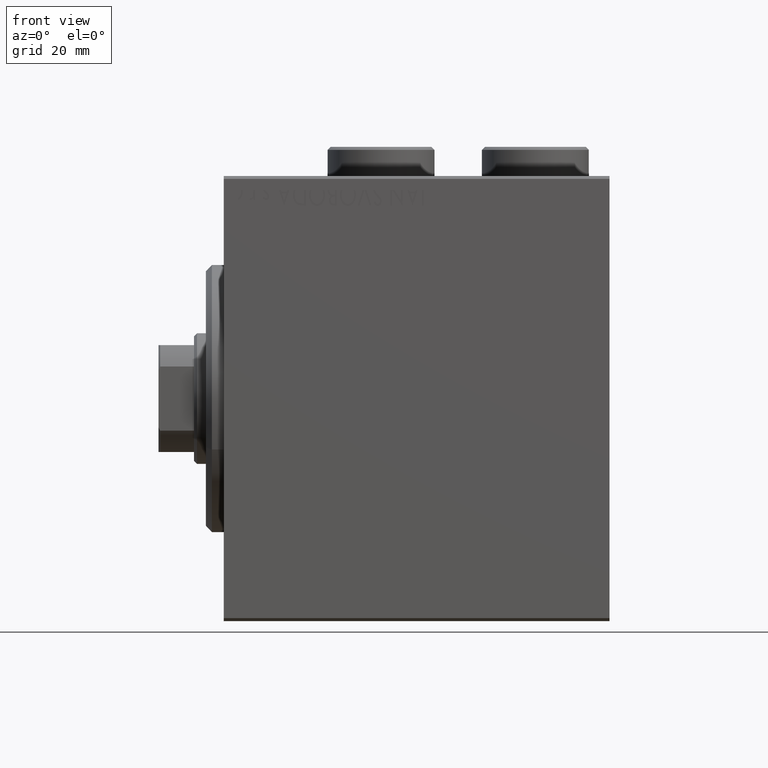
[diagram: clean part render]
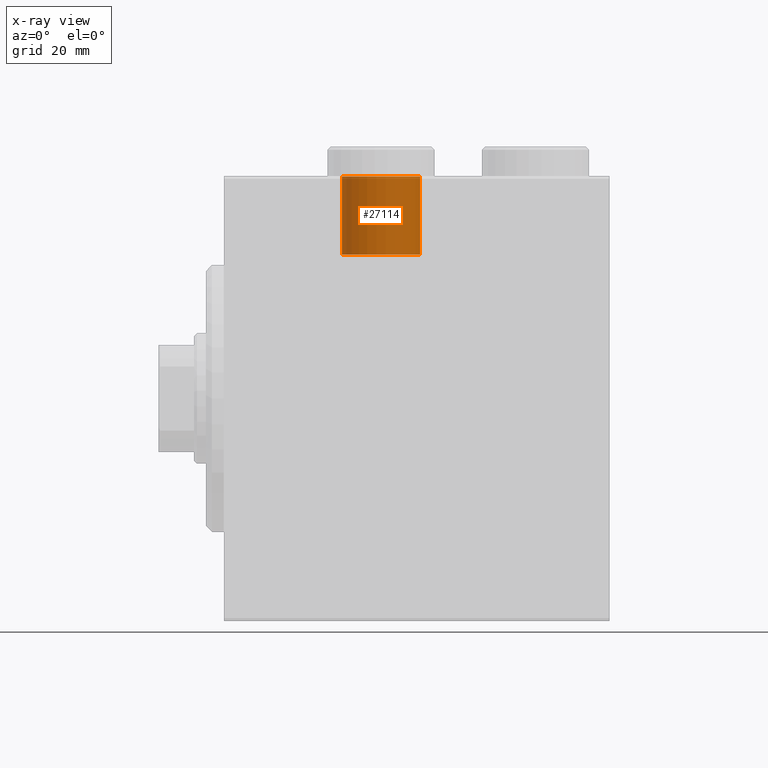
[diagram: x-ray — body ghosted, one internal face saturated and labeled with its STEP entity id]
A machine part, front view, then the same camera in x-ray: the body is ghosted and one INTERNAL B-rep face — a face not visible from any outside direction — is saturated and labeled: STEP entity #27114.
In plain terms, the highlighted cylindrical surface (partial cylindrical patch) has radius 6.58 mm, axis along (0, 0, 1).
Its self-contained STEP definition (entity closure, byte-faithful):
#1441 = AXIS2_PLACEMENT_3D ( 'NONE', #12755, #16866, #34208 ) ;
#1852 = FACE_OUTER_BOUND ( 'NONE', #9164, .T. ) ;
#3192 = VERTEX_POINT ( 'NONE', #39449 ) ;
#3264 = EDGE_CURVE ( 'NONE', #3192, #10413, #6350, .T. ) ;
#3537 = VECTOR ( 'NONE', #18986, 1000.000000000000000 ) ;
#4770 = CARTESIAN_POINT ( 'NONE',  ( 26.50000000000000000, -4.731064025391292434E-15, 37.40000000000000568 ) ) ;
#5526 = CARTESIAN_POINT ( 'NONE',  ( 33.07999999999999829, -4.731064025391292434E-15, 24.24000000000000554 ) ) ;
#5877 = EDGE_CURVE ( 'NONE', #14943, #10413, #12148, .T. ) ;
#6350 = CIRCLE ( 'NONE', #10006, 6.579999999999999183 ) ;
#8926 = DIRECTION ( 'NONE',  ( 1.000000000000000000, 0.000000000000000000, 0.000000000000000000 ) ) ;
#9164 = EDGE_LOOP ( 'NONE', ( #34846, #44509, #32918, #32646 ) ) ;
#10006 = AXIS2_PLACEMENT_3D ( 'NONE', #4770, #42647, #18677 ) ;
#10413 = VERTEX_POINT ( 'NONE', #36075 ) ;
#12148 = LINE ( 'NONE', #5526, #3537 ) ;
#12755 = CARTESIAN_POINT ( 'NONE',  ( 26.50000000000000000, -4.731064025391292434E-15, 24.24000000000000554 ) ) ;
#12761 = LINE ( 'NONE', #19821, #38728 ) ;
#14943 = VERTEX_POINT ( 'NONE', #25802 ) ;
#15020 = VERTEX_POINT ( 'NONE', #18298 ) ;
#15281 = CIRCLE ( 'NONE', #1441, 6.579999999999999183 ) ;
#16866 = DIRECTION ( 'NONE',  ( 0.000000000000000000, 0.000000000000000000, 1.000000000000000000 ) ) ;
#18298 = CARTESIAN_POINT ( 'NONE',  ( 19.92000000000000171, -3.925246431552334181E-15, 24.24000000000000554 ) ) ;
#18677 = DIRECTION ( 'NONE',  ( 1.000000000000000000, 0.000000000000000000, 0.000000000000000000 ) ) ;
#18986 = DIRECTION ( 'NONE',  ( -0.000000000000000000, -0.000000000000000000, 1.000000000000000000 ) ) ;
#19821 = CARTESIAN_POINT ( 'NONE',  ( 19.92000000000000171, -3.925246431552334181E-15, 24.24000000000000554 ) ) ;
#25802 = CARTESIAN_POINT ( 'NONE',  ( 33.07999999999999829, -4.731064025391292434E-15, 24.24000000000000554 ) ) ;
#27114 = ADVANCED_FACE ( 'NONE', ( #1852 ), #29686, .F. ) ;
#29686 = CYLINDRICAL_SURFACE ( 'NONE', #37008, 6.579999999999999183 ) ;
#29914 = CARTESIAN_POINT ( 'NONE',  ( 26.50000000000000000, -4.731064025391292434E-15, 24.24000000000000554 ) ) ;
#32170 = EDGE_CURVE ( 'NONE', #15020, #14943, #15281, .T. ) ;
#32646 = ORIENTED_EDGE ( 'NONE', *, *, #5877, .F. ) ;
#32918 = ORIENTED_EDGE ( 'NONE', *, *, #3264, .T. ) ;
#33755 = DIRECTION ( 'NONE',  ( -0.000000000000000000, -0.000000000000000000, 1.000000000000000000 ) ) ;
#34208 = DIRECTION ( 'NONE',  ( 1.000000000000000000, 0.000000000000000000, 0.000000000000000000 ) ) ;
#34846 = ORIENTED_EDGE ( 'NONE', *, *, #32170, .F. ) ;
#36075 = CARTESIAN_POINT ( 'NONE',  ( 33.07999999999999829, -4.731064025391292434E-15, 37.40000000000000568 ) ) ;
#36886 = EDGE_CURVE ( 'NONE', #15020, #3192, #12761, .T. ) ;
#37008 = AXIS2_PLACEMENT_3D ( 'NONE', #29914, #43593, #8926 ) ;
#38728 = VECTOR ( 'NONE', #33755, 1000.000000000000000 ) ;
#39449 = CARTESIAN_POINT ( 'NONE',  ( 19.92000000000000171, -3.925246431552334181E-15, 37.40000000000000568 ) ) ;
#42647 = DIRECTION ( 'NONE',  ( 0.000000000000000000, 0.000000000000000000, 1.000000000000000000 ) ) ;
#43593 = DIRECTION ( 'NONE',  ( -0.000000000000000000, -0.000000000000000000, 1.000000000000000000 ) ) ;
#44509 = ORIENTED_EDGE ( 'NONE', *, *, #36886, .T. ) ;